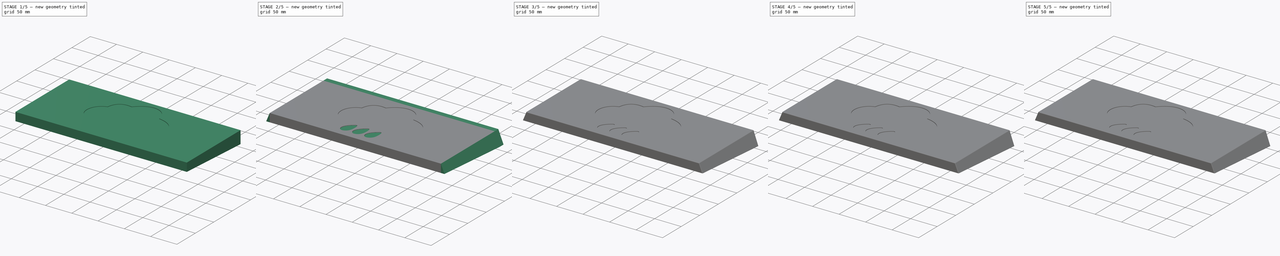
[diagram: build sequence overview — one tinted view per stage of 5, left to right]
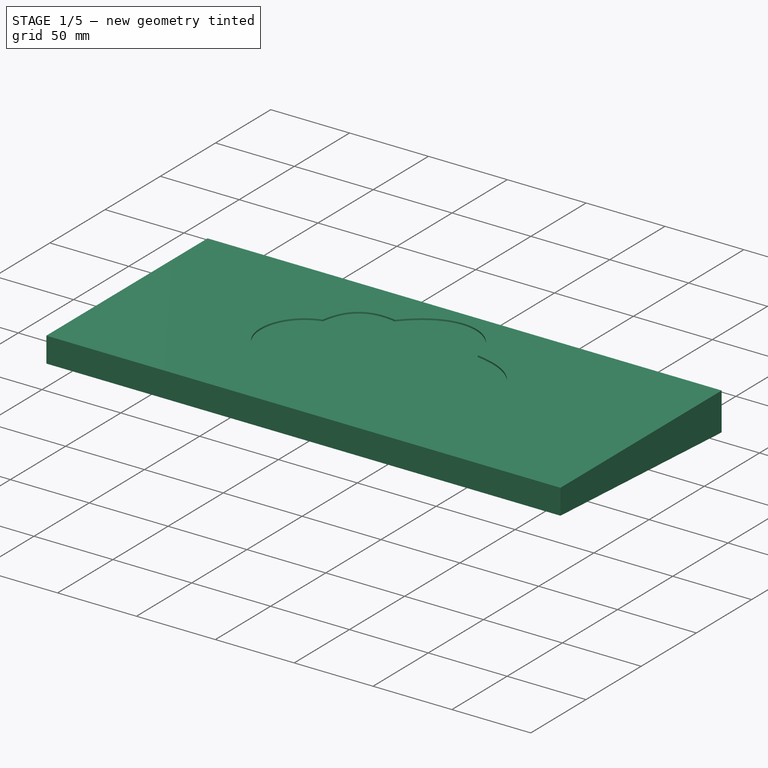
[diagram: stage 1 of 5 — iso view after this stage's code; geometry added in this stage tinted green]
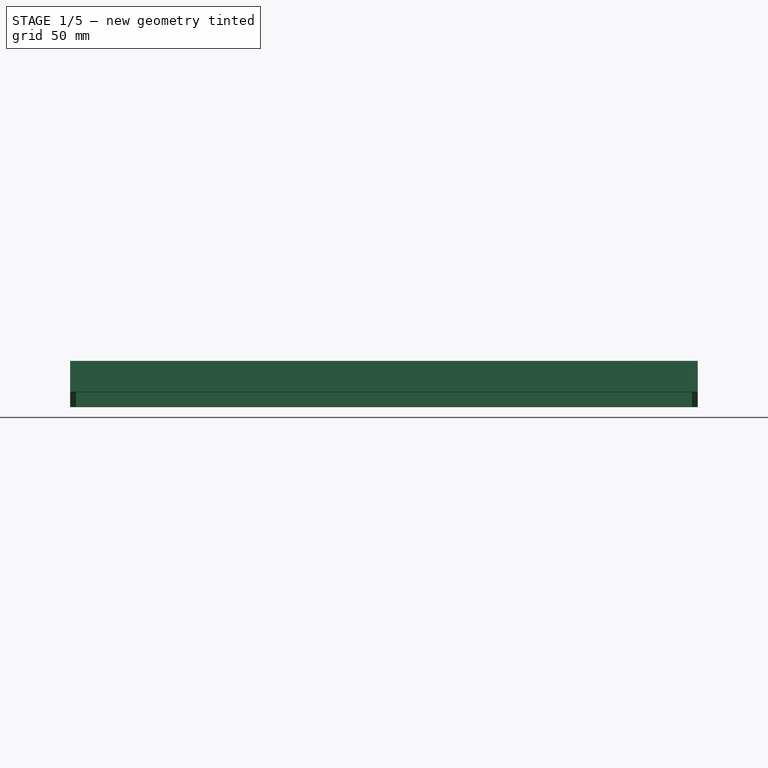
[diagram: stage 1 of 5 — front view after this stage's code; geometry added in this stage tinted green]
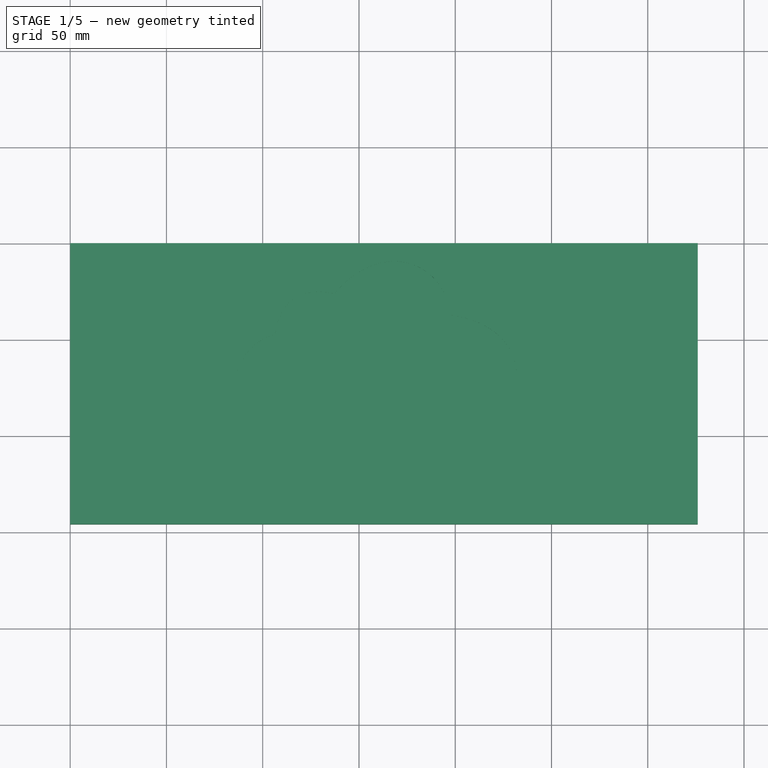
[diagram: stage 1 of 5 — top view after this stage's code; geometry added in this stage tinted green]
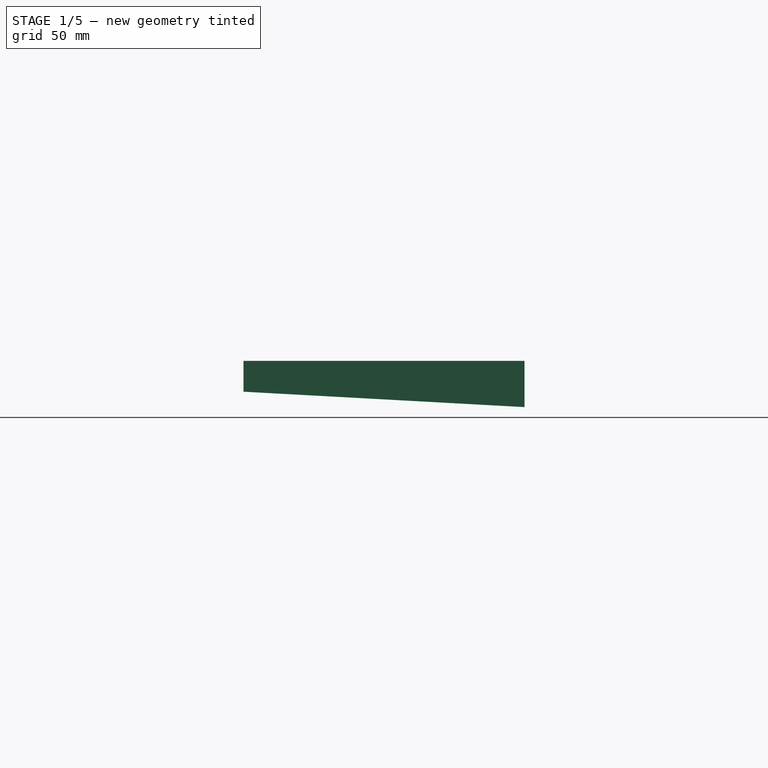
[diagram: stage 1 of 5 — right view after this stage's code; geometry added in this stage tinted green]
FCSTD DOCUMENT  (FreeCAD 0.21R33694 (Git))
Label: cap
License: All rights reserved
LicenseURL: http://en.wikipedia.org/wiki/All_rights_reserved
objects: PartDesign::Fillet×16, Sketcher::SketchObject×13, PartDesign::Pocket×8, PartDesign::Pad×5, PartDesign::Body×1
note: 72 computed .brp shape members not serialized (recipe doc carries the construction recipe); baked Part::Feature solids carry a one-line shape summary decoded from their .brp

FEATURE [Sketcher::SketchObject] Sketch
  FullyConstrained = true
  MapMode = 5
  Support = -> [XY_Plane]
  sketch-geometry (4):
    g0: LineSegment StartX=0 StartY=0 StartZ=0 EndX=326 EndY=0 EndZ=0
    g1: LineSegment StartX=326 StartY=0 StartZ=0 EndX=326 EndY=-146 EndZ=0
    g2: LineSegment StartX=326 StartY=-146 StartZ=0 EndX=0 EndY=-146 EndZ=0
    g3: LineSegment StartX=0 StartY=-146 StartZ=0 EndX=0 EndY=0 EndZ=0
  constraints (11):
    c: Coincident(g0,g1)
    c: Coincident(g1,g2)
    c: Coincident(g2,g3)
    c: Coincident(g3,g0)
    c: Horizontal(g0)
    c: Horizontal(g2)
    c: Vertical(g1)
    c: Vertical(g3)
    c: DistanceY(g1,g1) = 146
    c: DistanceX(g0,g0) = 326
    c: Coincident(g0,g-1)
FEATURE [PartDesign::Pad] Pad
  Direction = (0,0,1)
  Length = 24
  Length2 = 10
  Profile = -> Sketch
  ReferenceAxis = -> Sketch [N_Axis]
  Type = 0
FEATURE [Sketcher::SketchObject] Sketch001
  FullyConstrained = true
  MapMode = 5
  Placement = pos=(0,0,0) rot=(1,0,0;3.14159rad)
  Support = -> [Pad]
  sketch-geometry (4):
    g0: LineSegment StartX=3 StartY=141 StartZ=0 EndX=323 EndY=141 EndZ=0
    g1: LineSegment StartX=323 StartY=141 StartZ=0 EndX=323 EndY=3 EndZ=0
    g2: LineSegment StartX=323 StartY=3 StartZ=0 EndX=3 EndY=3 EndZ=0
    g3: LineSegment StartX=3 StartY=3 StartZ=0 EndX=3 EndY=141 EndZ=0
  constraints (12):
    c: Coincident(g0,g1)
    c: Coincident(g1,g2)
    c: Coincident(g2,g3)
    c: Coincident(g3,g0)
    c: Horizontal(g0)
    c: Horizontal(g2)
    c: Vertical(g1)
    c: Vertical(g3)
    c: DistanceX(g0,g0) = 320
    c: DistanceY(g1,g1) = 138
    c: DistanceX(g-1,g2) = 3
    c: DistanceY(g-1,g2) = 3
FEATURE [PartDesign::Pocket] Pocket
  BaseFeature = -> Pad
  Direction = (0,0,1)
  Length = 10
  Length2 = 5
  Profile = -> Sketch001
  ReferenceAxis = -> Sketch001 [N_Axis]
  Type = 0
FEATURE [Sketcher::SketchObject] Sketch002
  FullyConstrained = true
  MapMode = 5
  Placement = pos=(0,0,0) rot=(0.57735,-0.57735,-0.57735;2.0944rad)
  Support = -> [Pocket]
  sketch-geometry (3):
    g0: LineSegment StartX=0 StartY=0 StartZ=0 EndX=146 EndY=0 EndZ=0
    g1: LineSegment StartX=0 StartY=0 StartZ=0 EndX=146 EndY=8 EndZ=0
    g2: LineSegment StartX=146 StartY=8 StartZ=0 EndX=146 EndY=0 EndZ=0
  constraints (8):
    c: Horizontal(g0)
    c: Coincident(g0,g-1)
    c: Distance(g0) = 146
    c: Coincident(g1,g0)
    c: Vertical(g2)
    c: Coincident(g0,g2)
    c: Coincident(g2,g1)
    c: Distance(g2) = 8
FEATURE [PartDesign::Pocket] Pocket001
  BaseFeature = -> Pocket
  Direction = (1,0,0)
  Length = 350
  Length2 = 5
  Profile = -> Sketch002
  ReferenceAxis = -> Sketch002 [N_Axis]
  Type = 0
FEATURE [Sketcher::SketchObject] Sketch003
  FullyConstrained = true
  MapMode = 5
  Placement = pos=(0,0,10) rot=(1,0,0;3.14159rad)
  Support = -> [Pocket001]
  sketch-geometry (4):
    g0: LineSegment StartX=7 StartY=137 StartZ=0 EndX=319 EndY=137 EndZ=0
    g1: LineSegment StartX=319 StartY=137 StartZ=0 EndX=319 EndY=7 EndZ=0
    g2: LineSegment StartX=319 StartY=7 StartZ=0 EndX=7 EndY=7 EndZ=0
    g3: LineSegment StartX=7 StartY=7 StartZ=0 EndX=7 EndY=137 EndZ=0
  constraints (12):
    c: Coincident(g0,g1)
    c: Coincident(g1,g2)
    c: Coincident(g2,g3)
    c: Coincident(g3,g0)
    c: Horizontal(g0)
    c: Horizontal(g2)
    c: Vertical(g1)
    c: Vertical(g3)
    c: DistanceX(g-1,g2) = 7
    c: Distance(g2) = 312
    c: DistanceY(g-1,g2) = 7
    c: Distance(g3) = 130
FEATURE [PartDesign::Pocket] Pocket002
  BaseFeature = -> Pocket001
  Direction = (0,0,1)
  Length = 10
  Length2 = 5
  Profile = -> Sketch003
  ReferenceAxis = -> Sketch003 [N_Axis]
  Type = 0
FEATURE [Sketcher::SketchObject] Sketch004
  FullyConstrained = true
  MapMode = 5
  Placement = pos=(0,0,20) rot=(1,0,0;3.14159rad)
  Support = -> [Pocket002]
  sketch-geometry (4):
    g0: LineSegment StartX=7 StartY=38 StartZ=0 EndX=319 EndY=38 EndZ=0
    g1: LineSegment StartX=319 StartY=38 StartZ=0 EndX=319 EndY=36 EndZ=0
    g2: LineSegment StartX=319 StartY=36 StartZ=0 EndX=7 EndY=36 EndZ=0
    g3: LineSegment StartX=7 StartY=36 StartZ=0 EndX=7 EndY=38 EndZ=0
  constraints (12):
    c: Coincident(g0,g1)
    c: Coincident(g1,g2)
    c: Coincident(g2,g3)
    c: Coincident(g3,g0)
    c: Horizontal(g0)
    c: Horizontal(g2)
    c: Vertical(g1)
    c: Vertical(g3)
    c: DistanceY(g-1,g2) = 36
    c: Distance(g3) = 2
    c: DistanceX(g-1,g0) = 7
    c: Distance(g0) = 312
FEATURE [PartDesign::Pad] Pad001
  BaseFeature = -> Pocket002
  Direction = (0,0,-1)
  Length = 8
  Length2 = 10
  Profile = -> Sketch004
  ReferenceAxis = -> Sketch004 [N_Axis]
  Type = 0
FEATURE [Sketcher::SketchObject] Sketch005
  FullyConstrained = true
  MapMode = 5
  Placement = pos=(0,0,24) rot=(0,0,1;0rad)
  Support = -> [Pad001]
  sketch-geometry (28):
    g0-g3: Circle x4 (B-spline internal-alignment scaffolding for g4; pole/knot coordinates omitted)
    g4: BSplineCurve PolesCount=4 KnotsCount=2 Degree=3 IsPeriodic=0
    g5: GeomPoint X=197.39 Y=-37.25 Z=0
    g6: GeomPoint X=137.21 Y=-26.19 Z=0
    g7: Circle CenterX=137.21 CenterY=-26.19 CenterZ=0 NormalX=0 NormalY=0 NormalZ=1 AngleXU=0 Radius=1
    g8: Circle CenterX=110.49 CenterY=-21.03 CenterZ=0 NormalX=0 NormalY=0 NormalZ=1 AngleXU=0 Radius=1
    g9: Circle CenterX=106.38 CenterY=-47.47 CenterZ=0 NormalX=0 NormalY=0 NormalZ=1 AngleXU=0 Radius=1
    g10: BSplineCurve PolesCount=3 KnotsCount=2 Degree=2 IsPeriodic=0
    g11: GeomPoint X=137.21 Y=-26.19 Z=0
    g12: GeomPoint X=106.38 Y=-47.47 Z=0
    g13-g16: Circle x4 (B-spline internal-alignment scaffolding for g17; pole/knot coordinates omitted)
    g17: BSplineCurve PolesCount=4 KnotsCount=2 Degree=3 IsPeriodic=0
    g18: GeomPoint X=197.39 Y=-37.25 Z=0
    g19: GeomPoint X=198.8 Y=-99.1 Z=0
    g20: LineSegment StartX=198.8 StartY=-99.1 StartZ=0 EndX=112.19 EndY=-99.1 EndZ=0
    g21-g24: Circle x4 (B-spline internal-alignment scaffolding for g25; pole/knot coordinates omitted)
    g25: BSplineCurve PolesCount=4 KnotsCount=2 Degree=3 IsPeriodic=0
    g26: GeomPoint X=106.38 Y=-47.47 Z=0
    g27: GeomPoint X=112.19 Y=-99.1 Z=0
  constraints (58):
    c: Weight(g0) = 1
    c: Equal(g0,g1)
    c: Equal(g0,g2)
    c: Equal(g0,g3)
    c: InternalAlignment(g0-g3 -> g4) x4
    c: InternalAlignment(g5,g4)
    c: InternalAlignment(g6,g4)
    c: DistanceY(g4) = -37.25
    c: DistanceX(g4) = 197.39
    c: DistanceY(g4) = -26.19
    c: DistanceX(g4) = 137.21
    c: DistanceY(g2) = 3.81
    c: DistanceX(g2) = 163.08
    c: DistanceX(g1) = 194.95
    c: DistanceY(g1) = -10.73
    c: Weight(g7) = 1
    c: Equal(g7,g8)
    c: Equal(g7,g9)
    c: InternalAlignment(g7,g10)
    c: InternalAlignment(g8,g10)
    c: InternalAlignment(g9,g10)
    c: InternalAlignment(g11,g10)
    c: InternalAlignment(g12,g10)
    c: Coincident(g4,g10)
    c: DistanceY(g10) = -47.47
    c: DistanceX(g10) = 106.38
    c: DistanceX(g8) = 110.49
    c: DistanceY(g8) = -21.03
    c: Weight(g13) = 1
    c: Equal(g13,g14)
    c: Equal(g13,g15)
    c: Equal(g13,g16)
    c: InternalAlignment(g13-g16 -> g17) x4
    c: InternalAlignment(g18,g17)
    c: InternalAlignment(g19,g17)
    c: Coincident(g17,g4)
    c: DistanceY(g17) = -99.1
    c: DistanceX(g17) = 198.8
    c: Horizontal(g20)
    c: Coincident(g20,g17)
    c: Weight(g21) = 1
    c: Equal(g21,g22)
    c: Equal(g21,g23)
    c: Equal(g21,g24)
    c: InternalAlignment(g21-g24 -> g25) x4
    c: InternalAlignment(g26,g25)
    c: InternalAlignment(g27,g25)
    c: Coincident(g25,g20)
    c: Coincident(g25,g10)
    c: DistanceY(g14) = -44.58
    c: DistanceX(g14) = 247.04
    c: DistanceY(g15) = -96.16
    c: DistanceX(g15) = 238.66
    c: DistanceX(g22) = 77.83
    c: DistanceY(g22) = -55.23
    c: DistanceY(g23) = -100.02
    c: DistanceX(g23) = 78.31
    c: DistanceX(g20) = 112.19
FEATURE [PartDesign::Pocket] Pocket003
  BaseFeature = -> Pad001
  Direction = (0,0,-1)
  Length = 1
  Length2 = 5
  Profile = -> Sketch005
  ReferenceAxis = -> Sketch005 [N_Axis]
  Type = 0
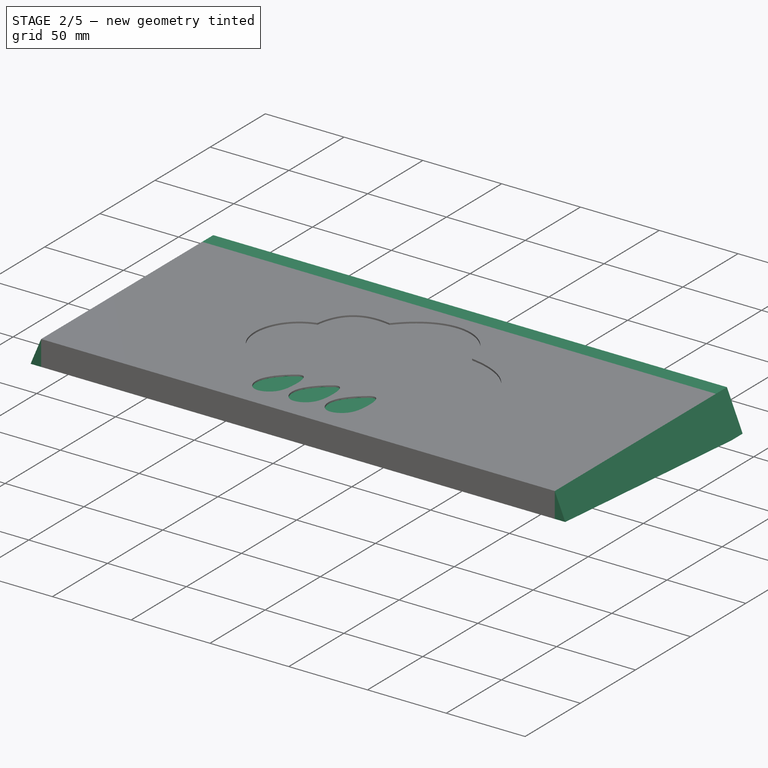
[diagram: stage 2 of 5 — iso view after this stage's code; geometry added in this stage tinted green]
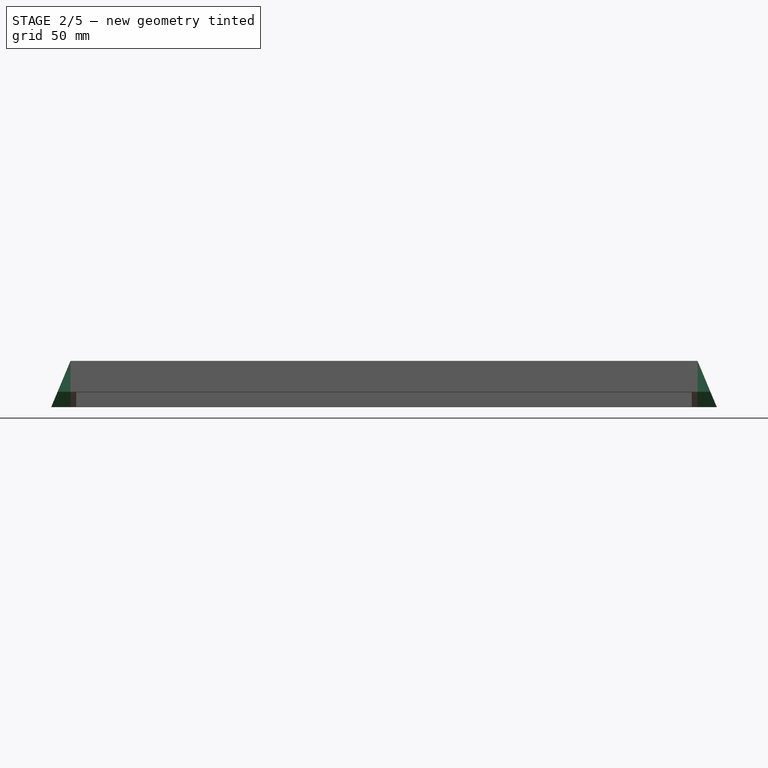
[diagram: stage 2 of 5 — front view after this stage's code; geometry added in this stage tinted green]
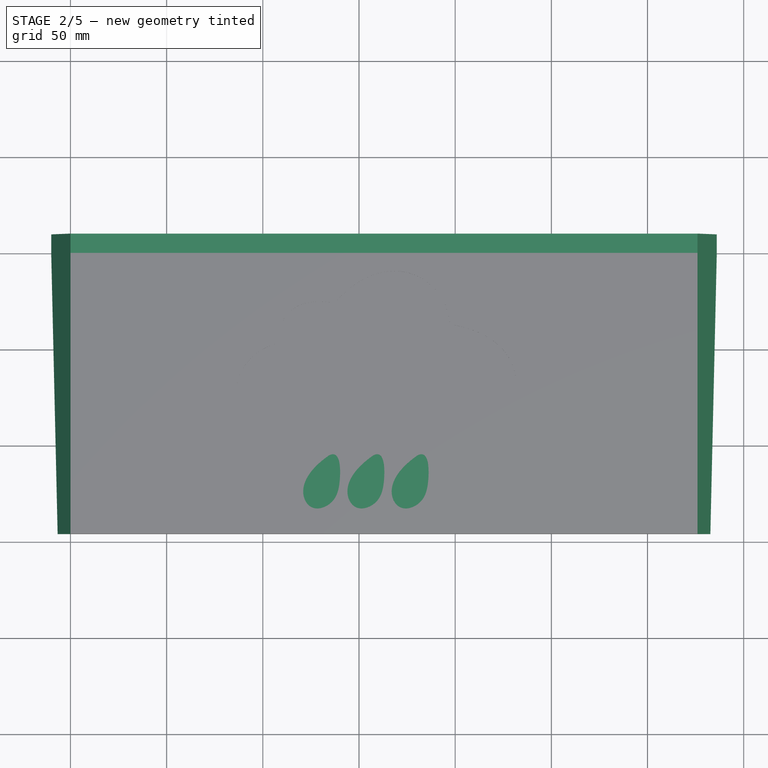
[diagram: stage 2 of 5 — top view after this stage's code; geometry added in this stage tinted green]
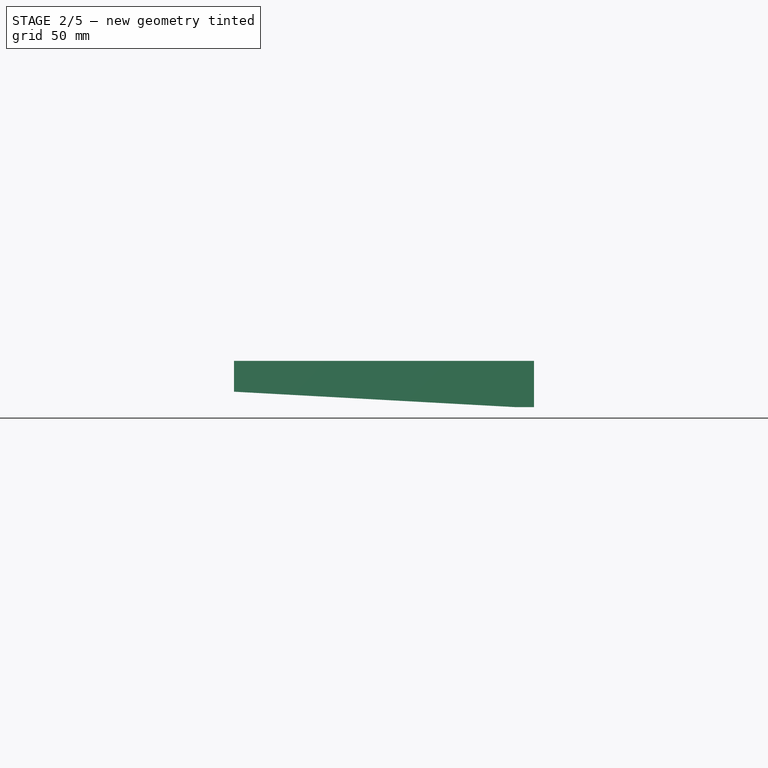
[diagram: stage 2 of 5 — right view after this stage's code; geometry added in this stage tinted green]
FEATURE [Sketcher::SketchObject] Sketch006
  FullyConstrained = true
  MapMode = 5
  Placement = pos=(0,0,24) rot=(0,0,1;0rad)
  Support = -> [Pocket003]
  sketch-geometry (39):
    g0-g6: Circle x7 (B-spline internal-alignment scaffolding for g7; pole/knot coordinates omitted)
    g7: BSplineCurve PolesCount=7 KnotsCount=5 Degree=3 IsPeriodic=0
    g8-g12: GeomPoint x5 (B-spline internal-alignment scaffolding for g7; pole/knot coordinates omitted)
    g13-g19: Circle x7 (B-spline internal-alignment scaffolding for g20; pole/knot coordinates omitted)
    g20: BSplineCurve PolesCount=7 KnotsCount=5 Degree=3 IsPeriodic=0
    g21-g25: GeomPoint x5 (B-spline internal-alignment scaffolding for g20; pole/knot coordinates omitted)
    g26-g32: Circle x7 (B-spline internal-alignment scaffolding for g33; pole/knot coordinates omitted)
    g33: BSplineCurve PolesCount=7 KnotsCount=5 Degree=3 IsPeriodic=0
    g34-g38: GeomPoint x5 (B-spline internal-alignment scaffolding for g33; pole/knot coordinates omitted)
  constraints (51):
    c: Weight(g0) = 1
    c: Equal(g0, g1-g6) x6
    c: Coincident(g7,g0)
    c: InternalAlignment(g0-g6 -> g7) x7
    c: InternalAlignment(g8-g12 -> g7) x5
    c: DistanceX(g5) = 139.96
    c: DistanceY(g5) = -102.27
    c: DistanceX(g7) = 134.29
    c: DistanceX(g1) = 118.6
    c: DistanceX(g4) = 140.99
    c: DistanceX(g2) = 120.88
    c: DistanceX(g3) = 137.06
    c: DistanceY(g2,g3) = 4.29
    c: DistanceY(g3,g4) = 12.2
    c: DistanceY(g2,g1) = 19.54
    c: DistanceY(g1,g7) = 10.98
    c: DistanceY(g7,g5) = 3.12
    c: Weight(g13) = 1
    c: Equal(g13, g14-g19) x6
    c: Coincident(g20,g13)
    c: InternalAlignment(g13-g19 -> g20) x7
    c: InternalAlignment(g21-g25 -> g20) x5
    c: DistanceX(g7,g20) = 23
    c: DistanceY(g5,g18) = 0
    c: DistanceX(g5,g18) = 23
    c: DistanceY(g1,g14) = 0
    c: DistanceX(g1,g14) = 23
    c: DistanceY(g2,g15) = 0
    c: DistanceX(g2,g15) = 23
    c: DistanceX(g3,g16) = 23
    c: DistanceY(g3,g16) = 0
    c: DistanceX(g4,g17) = 23
    c: DistanceY(g4,g17) = 0
    c: DistanceY(g20,g7) = 0
    c: Weight(g26) = 1
    c: Equal(g26, g27-g32) x6
    c: Coincident(g33,g26)
    c: InternalAlignment(g26-g32 -> g33) x7
    c: InternalAlignment(g34-g38 -> g33) x5
    c: DistanceY(g20,g33) = 0
    c: DistanceX(g20,g33) = 23
    c: DistanceY(g14,g27) = 0
    c: DistanceX(g14,g27) = 23
    c: DistanceY(g15,g28) = 0
    c: DistanceX(g15,g28) = 23
    c: DistanceY(g16,g29) = 0
    c: DistanceX(g16,g29) = 23
    c: DistanceY(g17,g30) = 0
    c: DistanceX(g17,g30) = 23
    c: DistanceX(g18,g31) = 23
    c: DistanceY(g18,g31) = 0
FEATURE [PartDesign::Pocket] Pocket004
  BaseFeature = -> Pocket003
  Direction = (0,0,-1)
  Length = 1
  Length2 = 5
  Profile = -> Sketch006
  ReferenceAxis = -> Sketch006 [N_Axis]
  Type = 0
FEATURE [Sketcher::SketchObject] Sketch007
  FullyConstrained = true
  MapMode = 5
  Placement = pos=(0,0,0) rot=(0,0.707107,0.707107;3.14159rad)
  Support = -> [Pocket004]
  sketch-geometry (4):
    g0: LineSegment StartX=-326 StartY=24 StartZ=0 EndX=0 EndY=24 EndZ=0
    g1: LineSegment StartX=0 StartY=24 StartZ=0 EndX=0 EndY=0 EndZ=0
    g2: LineSegment StartX=0 StartY=0 StartZ=0 EndX=-326 EndY=0 EndZ=0
    g3: LineSegment StartX=-326 StartY=0 StartZ=0 EndX=-326 EndY=24 EndZ=0
  constraints (11):
    c: Coincident(g0,g1)
    c: Coincident(g1,g2)
    c: Coincident(g2,g3)
    c: Coincident(g3,g0)
    c: Horizontal(g0)
    c: Horizontal(g2)
    c: Vertical(g1)
    c: Vertical(g3)
    c: Coincident(g1,g-1)
    c: Distance(g1) = 24
    c: Distance(g0) = 326
FEATURE [PartDesign::Pad] Pad002
  BaseFeature = -> Pocket004
  Direction = (0,1,-2e-16)
  Length = 10
  Length2 = 10
  Profile = -> Sketch007
  ReferenceAxis = -> Sketch007 [N_Axis]
  Type = 0
FEATURE [Sketcher::SketchObject] Sketch009
  FullyConstrained = true
  MapMode = 5
  Placement = pos=(0,0,0) rot=(0.57735,-0.57735,-0.57735;2.0944rad)
  Support = -> [Pad002]
  sketch-geometry (5):
    g0: LineSegment StartX=-10 StartY=24 StartZ=0 EndX=-10 EndY=0 EndZ=0
    g1: LineSegment StartX=-10 StartY=0 StartZ=0 EndX=0 EndY=0 EndZ=0
    g2: LineSegment StartX=0 StartY=0 StartZ=0 EndX=146 EndY=8 EndZ=0
    g3: LineSegment StartX=146 StartY=8 StartZ=0 EndX=146 EndY=24 EndZ=0
    g4: LineSegment StartX=146 StartY=24 StartZ=0 EndX=-10 EndY=24 EndZ=0
  constraints (14):
    c: Vertical(g0)
    c: Coincident(g1,g0)
    c: Horizontal(g1)
    c: Horizontal(g4)
    c: Coincident(g1,g-1)
    c: Distance(g1) = 10
    c: Distance(g0) = 24
    c: Coincident(g4,g0)
    c: Distance(g4) = 156
    c: Vertical(g3)
    c: Coincident(g4,g3)
    c: Coincident(g2,g3)
    c: Coincident(g2,g1)
    c: Distance(g3) = 16
FEATURE [PartDesign::Pad] Pad003
  BaseFeature = -> Pad002
  Direction = (-1,0,0)
  Length = 20
  Length2 = 10
  Profile = -> Sketch009
  ReferenceAxis = -> Sketch009 [N_Axis]
  Type = 0
FEATURE [Sketcher::SketchObject] Sketch010
  FullyConstrained = true
  MapMode = 5
  Placement = pos=(326,0,0) rot=(0.57735,0.57735,0.57735;2.0944rad)
  Support = -> [Pad003]
  sketch-geometry (5):
    g0: LineSegment StartX=10 StartY=24 StartZ=0 EndX=10 EndY=0 EndZ=0
    g1: LineSegment StartX=10 StartY=0 StartZ=0 EndX=0 EndY=0 EndZ=0
    g2: LineSegment StartX=0 StartY=0 StartZ=0 EndX=-146 EndY=8 EndZ=0
    g3: LineSegment StartX=-146 StartY=8 StartZ=0 EndX=-146 EndY=24 EndZ=0
    g4: LineSegment StartX=-146 StartY=24 StartZ=0 EndX=10 EndY=24 EndZ=0
  constraints (14):
    c: Vertical(g0)
    c: Coincident(g1,g0)
    c: Horizontal(g1)
    c: Vertical(g3)
    c: Horizontal(g4)
    c: Coincident(g1,g-1)
    c: Distance(g1) = 10
    c: Distance(g0) = 24
    c: Coincident(g4,g0)
    c: Distance(g4) = 156
    c: Coincident(g3,g4)
    c: Distance(g3) = 16
    c: Coincident(g2,g3)
    c: Coincident(g2,g1)
FEATURE [PartDesign::Pad] Pad004
  BaseFeature = -> Pad003
  Direction = (1,0,0)
  Length = 20
  Length2 = 10
  Profile = -> Sketch010
  ReferenceAxis = -> Sketch010 [N_Axis]
  Type = 0
FEATURE [Sketcher::SketchObject] Sketch011
  FullyConstrained = true
  MapMode = 5
  Placement = pos=(0,10,0) rot=(0,0.707107,0.707107;3.14159rad)
  Support = -> [Pad004]
  sketch-geometry (4):
    g0: LineSegment StartX=10 StartY=0 StartZ=0 EndX=0 EndY=24 EndZ=0
    g1: LineSegment StartX=10 StartY=0 StartZ=0 EndX=90.06 EndY=0 EndZ=0
    g2: LineSegment StartX=90.06 StartY=0 StartZ=0 EndX=62.8148 EndY=43.29 EndZ=0
    g3: LineSegment StartX=62.8148 StartY=43.29 StartZ=0 EndX=0 EndY=24 EndZ=0
  constraints (12):
    c: DistanceY(g-1,g0) = 0
    c: DistanceX(g-1,g0) = 10
    c: DistanceX(g0) = 0
    c: DistanceY(g0) = 24
    c: Horizontal(g1)
    c: Coincident(g1,g0)
    c: Distance(g1) = 80.06
    c: Coincident(g2,g1)
    c: Coincident(g3,g2)
    c: Coincident(g3,g0)
    c: Distance(g3) = 65.71
    c: Distance(g2) = 51.15
FEATURE [PartDesign::Pocket] Pocket005
  BaseFeature = -> Pad004
  Direction = (0,-1,2e-16)
  Length = 160
  Length2 = 5
  Profile = -> Sketch011
  ReferenceAxis = -> Sketch011 [N_Axis]
  Type = 0
FEATURE [Sketcher::SketchObject] Sketch012
  FullyConstrained = true
  MapMode = 5
  Placement = pos=(0,10,0) rot=(0,0.707107,0.707107;3.14159rad)
  Support = -> [Pocket005]
  sketch-geometry (4):
    g0: LineSegment StartX=-383.56 StartY=0 StartZ=0 EndX=-336 EndY=0 EndZ=0
    g1: LineSegment StartX=-336 StartY=0 StartZ=0 EndX=-326 EndY=24 EndZ=0
    g2: LineSegment StartX=-383.56 StartY=0 StartZ=0 EndX=-386.968 EndY=53.4314 EndZ=0
    g3: LineSegment StartX=-386.968 StartY=53.4314 StartZ=0 EndX=-326 EndY=24 EndZ=0
  constraints (12):
    c: Horizontal(g0)
    c: DistanceY(g0) = 0
    c: DistanceX(g0) = -336
    c: Coincident(g1,g0)
    c: DistanceX(g1) = -326
    c: DistanceY(g1) = 24
    c: Distance(g0) = 47.56
    c: Coincident(g2,g0)
    c: Coincident(g3,g2)
    c: Coincident(g3,g1)
    c: Distance(g3) = 67.7
    c: Distance(g2) = 53.54
FEATURE [PartDesign::Pocket] Pocket006
  BaseFeature = -> Pocket005
  Direction = (0,-1,2e-16)
  Length = 380
  Length2 = 5
  Profile = -> Sketch012
  ReferenceAxis = -> Sketch012 [N_Axis]
  Type = 0
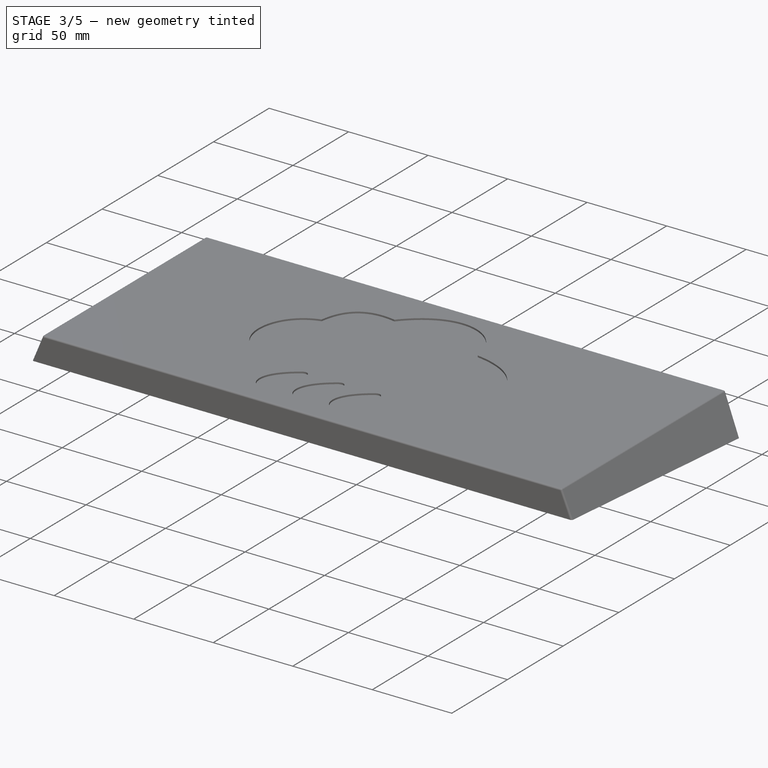
[diagram: stage 3 of 5 — iso view after this stage's code; geometry added in this stage tinted green]
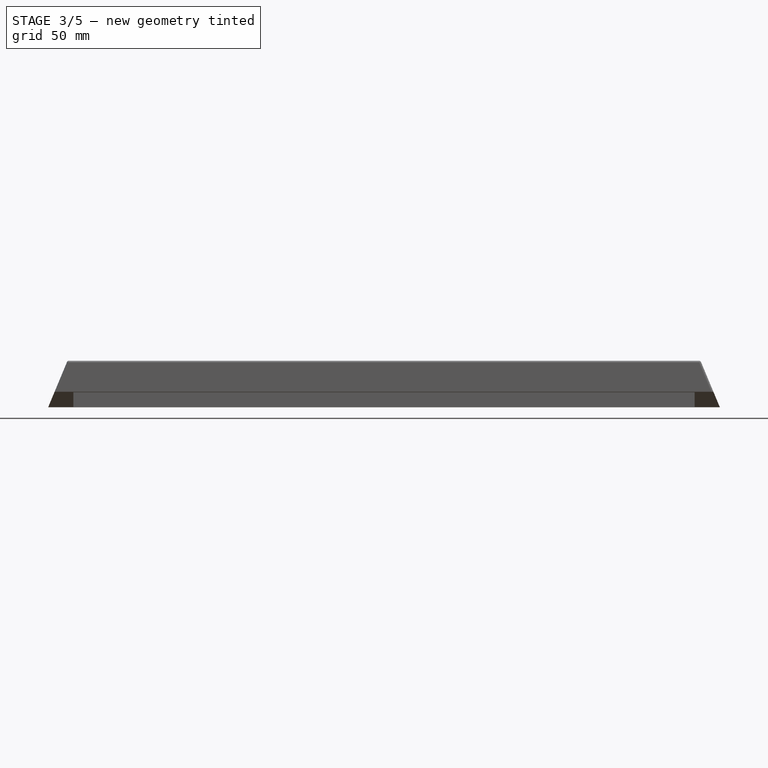
[diagram: stage 3 of 5 — front view after this stage's code; geometry added in this stage tinted green]
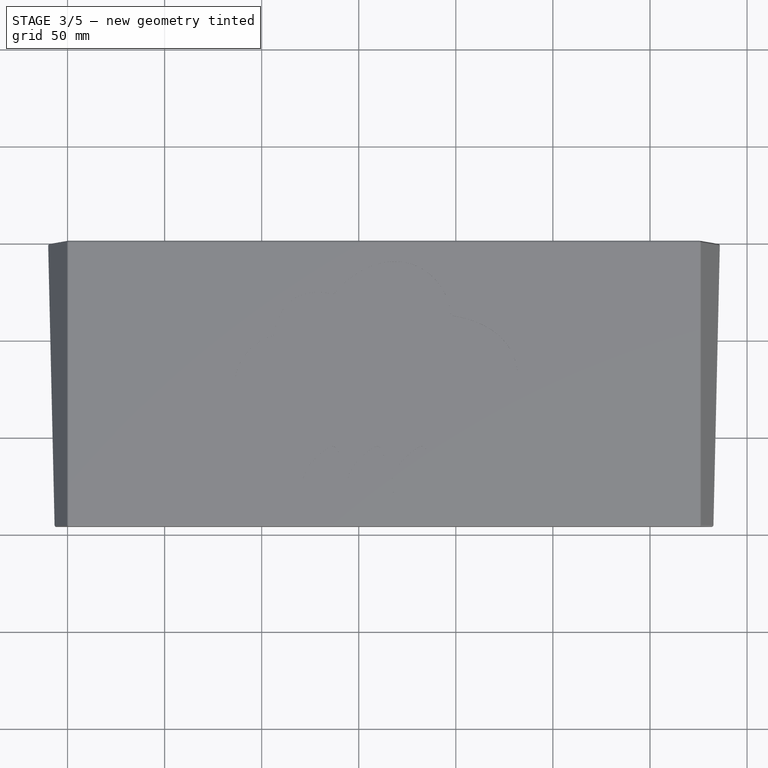
[diagram: stage 3 of 5 — top view after this stage's code; geometry added in this stage tinted green]
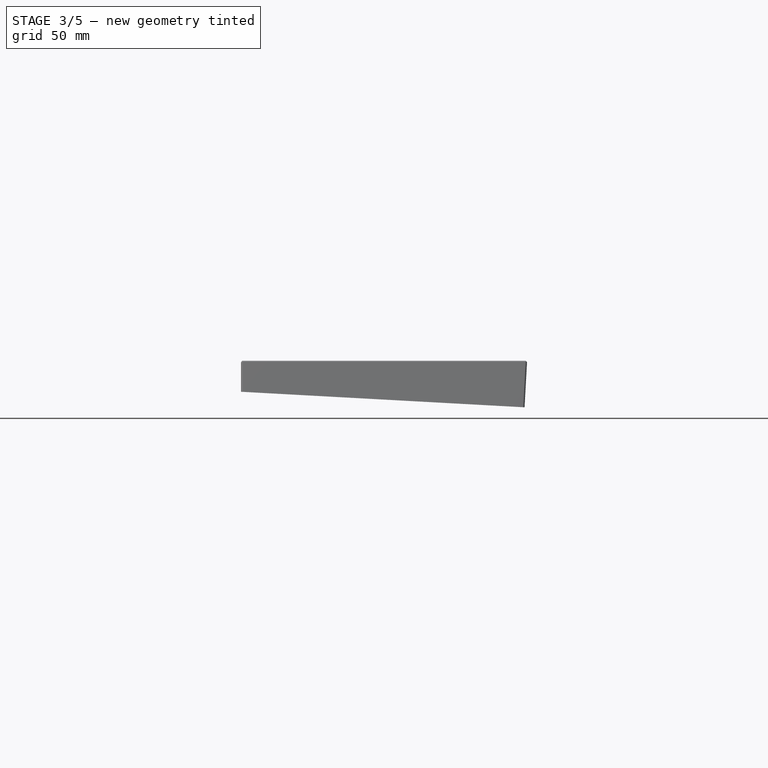
[diagram: stage 3 of 5 — right view after this stage's code; geometry added in this stage tinted green]
FEATURE [Sketcher::SketchObject] Sketch013
  FullyConstrained = true
  MapMode = 5
  Placement = pos=(0,0,0) rot=(0.57735,0.57735,0.57735;2.0944rad)
  Support = -> [YZ_Plane]
  sketch-geometry (4):
    g0: LineSegment StartX=0 StartY=0 StartZ=0 EndX=3.1 EndY=56.61 EndZ=0
    g1: LineSegment StartX=3.1 StartY=56.61 StartZ=0 EndX=76.0923 EndY=25.7187 EndZ=0
    g2: LineSegment StartX=76.0923 StartY=25.7187 StartZ=0 EndX=62.818 EndY=-34.69 EndZ=0
    g3: LineSegment StartX=62.818 StartY=-34.69 StartZ=0 EndX=0 EndY=0 EndZ=0
  constraints (12):
    c: DistanceX(g0) = 0
    c: DistanceY(g0) = 0
    c: DistanceY(g0) = 56.61
    c: DistanceX(g0) = 3.1
    c: Coincident(g1,g0)
    c: Coincident(g3,g0)
    c: Coincident(g1,g2)
    c: Distance(g1) = 79.26
    c: Distance(g2) = 61.85
    c: Coincident(g3,g2)
    c: Distance(g3) = 71.76
    c: DistanceY(g2) = -34.69
FEATURE [PartDesign::Pocket] Pocket007
  BaseFeature = -> Pocket006
  Direction = (-1,2e-16,-3e-16)
  Length = 720
  Length2 = 5
  Midplane = true
  Profile = -> Sketch013
  ReferenceAxis = -> Sketch013 [N_Axis]
  Type = 0
FEATURE [PartDesign::Fillet] Fillet
  Base = -> Pocket007 [Edge30]
  BaseFeature = -> Pocket007
  Radius = 1
  SupportTransform = false
  UseAllEdges = false
FEATURE [PartDesign::Fillet] Fillet001
  Base = -> Fillet [Edge39]
  BaseFeature = -> Fillet
  Radius = 1
  SupportTransform = false
  UseAllEdges = false
FEATURE [PartDesign::Fillet] Fillet002
  Base = -> Fillet001 [Edge37]
  BaseFeature = -> Fillet001
  Radius = 1
  SupportTransform = false
  UseAllEdges = false
FEATURE [PartDesign::Fillet] Fillet003
  Base = -> Fillet002 [Edge37]
  BaseFeature = -> Fillet002
  Radius = 1
  SupportTransform = false
  UseAllEdges = false
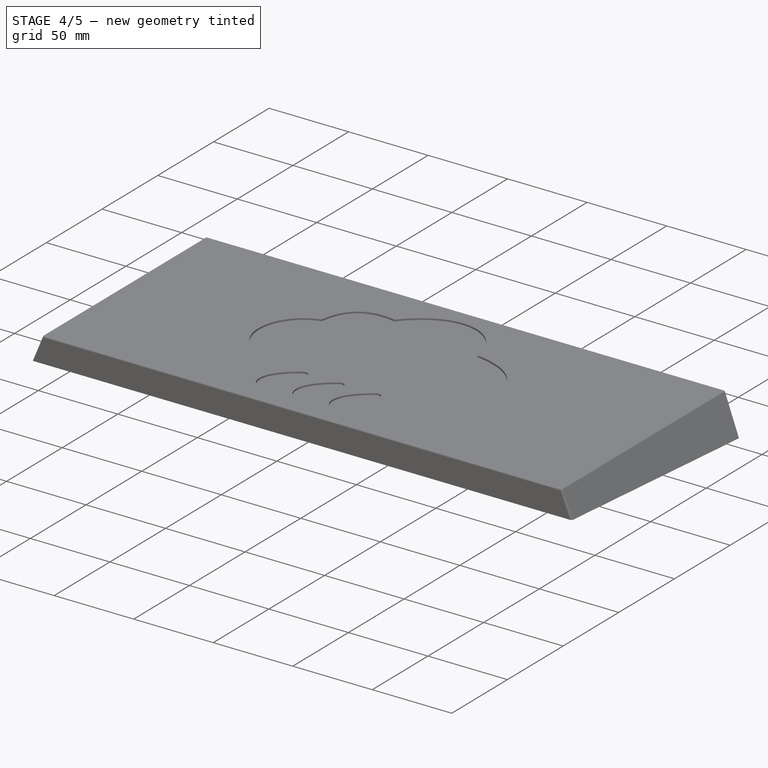
[diagram: stage 4 of 5 — iso view after this stage's code; geometry added in this stage tinted green]
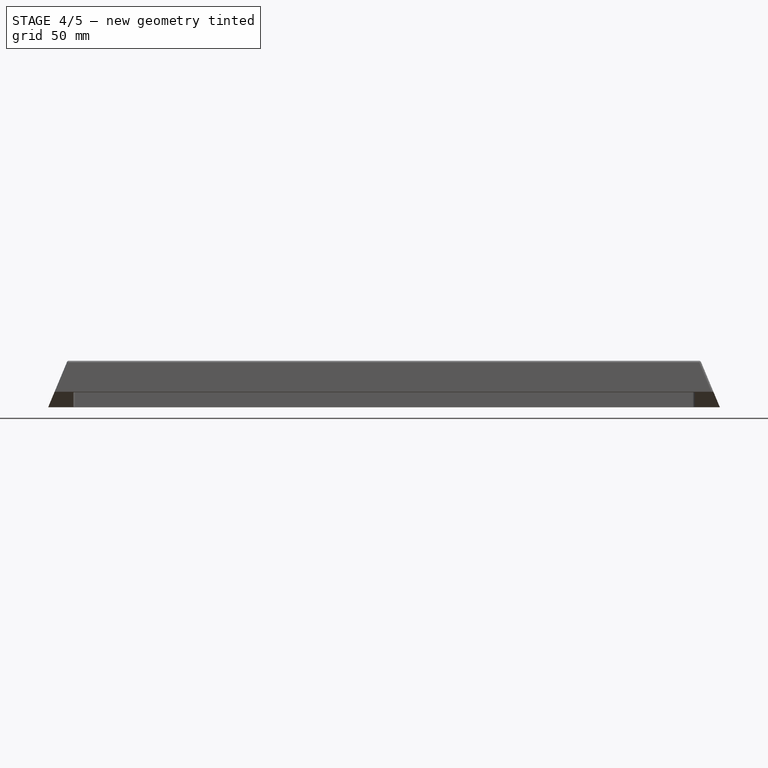
[diagram: stage 4 of 5 — front view after this stage's code; geometry added in this stage tinted green]
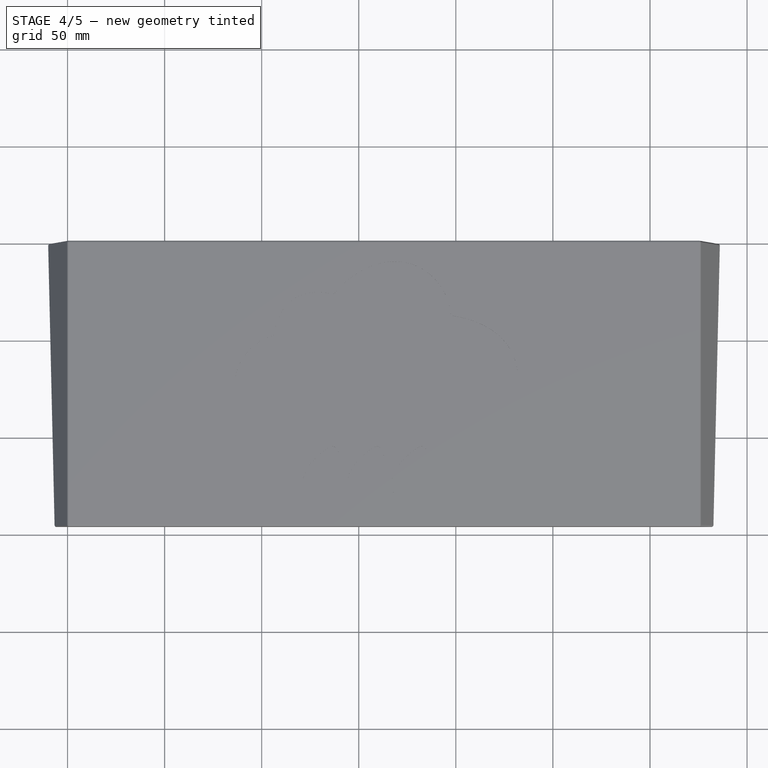
[diagram: stage 4 of 5 — top view after this stage's code; geometry added in this stage tinted green]
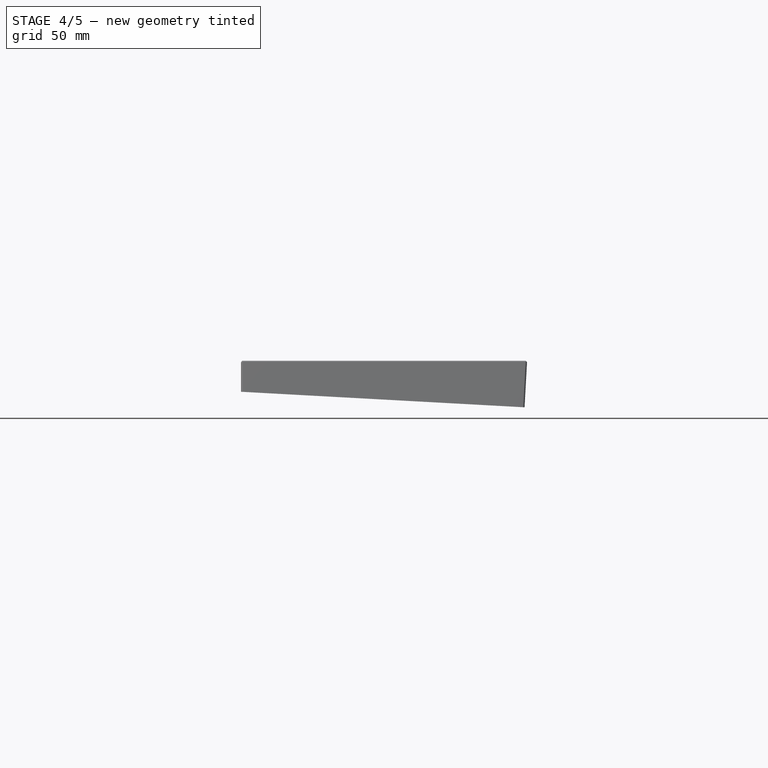
[diagram: stage 4 of 5 — right view after this stage's code; geometry added in this stage tinted green]
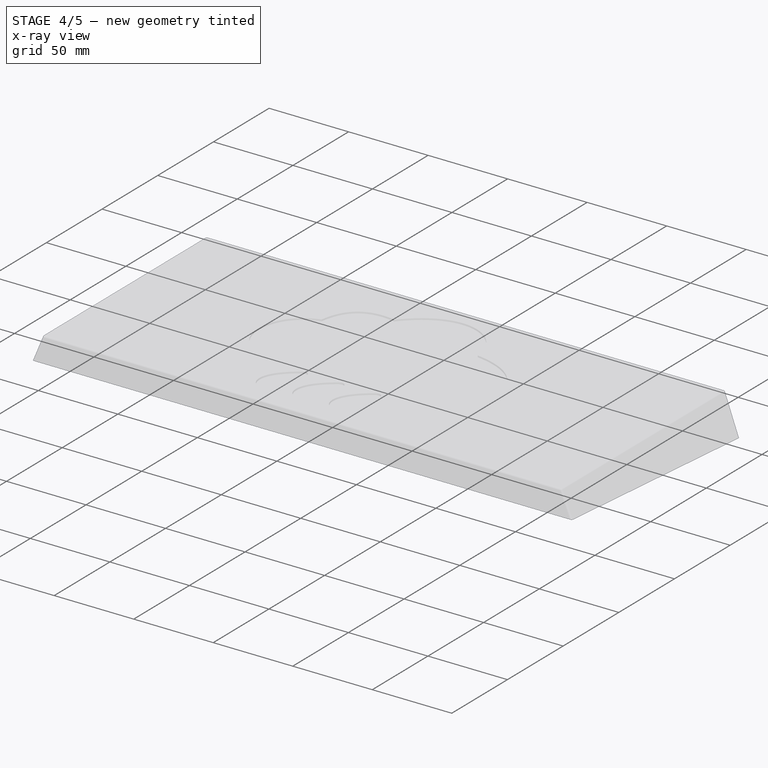
[diagram: stage 4 of 5 — x-ray composite at the iso view; earlier geometry ghosted, this stage's added geometry solid]
FEATURE [PartDesign::Fillet] Fillet004
  Base = -> Fillet003 [Edge55]
  BaseFeature = -> Fillet003
  Radius = 1
  SupportTransform = false
  UseAllEdges = false
FEATURE [PartDesign::Fillet] Fillet005
  Base = -> Fillet004 [Edge8]
  BaseFeature = -> Fillet004
  Radius = 1
  SupportTransform = false
  UseAllEdges = false
FEATURE [PartDesign::Fillet] Fillet006
  Base = -> Fillet005 [Edge4]
  BaseFeature = -> Fillet005
  Radius = 1
  SupportTransform = false
  UseAllEdges = false
FEATURE [PartDesign::Fillet] Fillet007
  Base = -> Fillet006 [Edge4]
  BaseFeature = -> Fillet006
  Radius = 1
  SupportTransform = false
  UseAllEdges = false
FEATURE [PartDesign::Fillet] Fillet008
  Base = -> Fillet007 [Edge31]
  BaseFeature = -> Fillet007
  Radius = 2
  SupportTransform = false
  UseAllEdges = false
FEATURE [PartDesign::Fillet] Fillet009
  Base = -> Fillet008 [Edge1]
  BaseFeature = -> Fillet008
  Radius = 2
  SupportTransform = false
  UseAllEdges = false
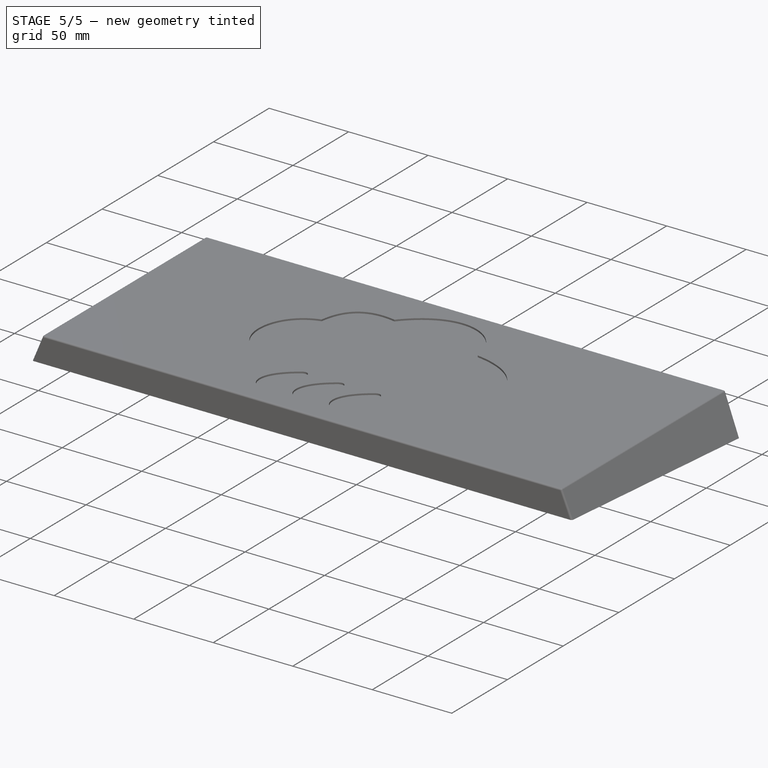
[diagram: stage 5 of 5 — iso view after this stage's code; geometry added in this stage tinted green]
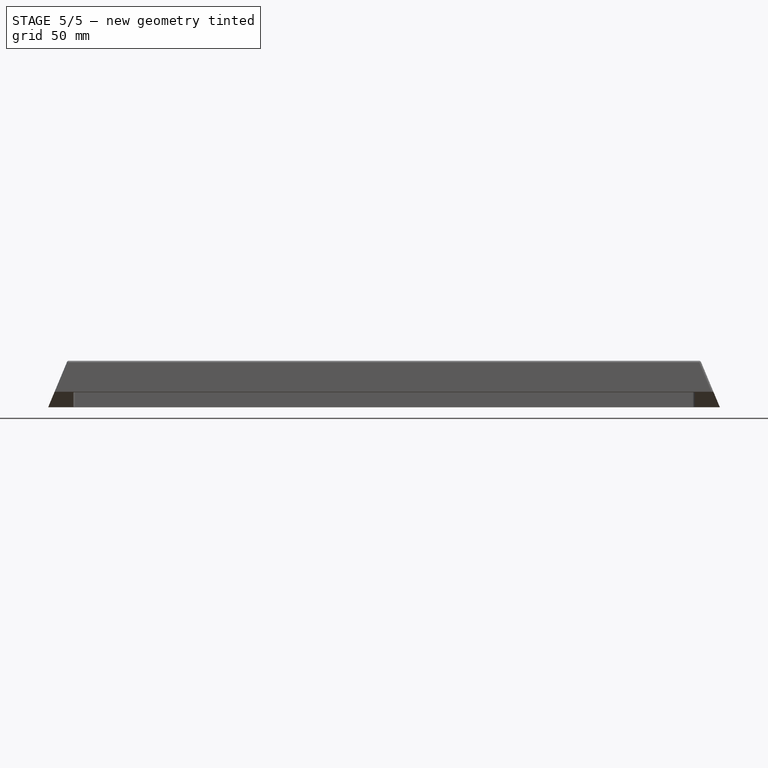
[diagram: stage 5 of 5 — front view after this stage's code; geometry added in this stage tinted green]
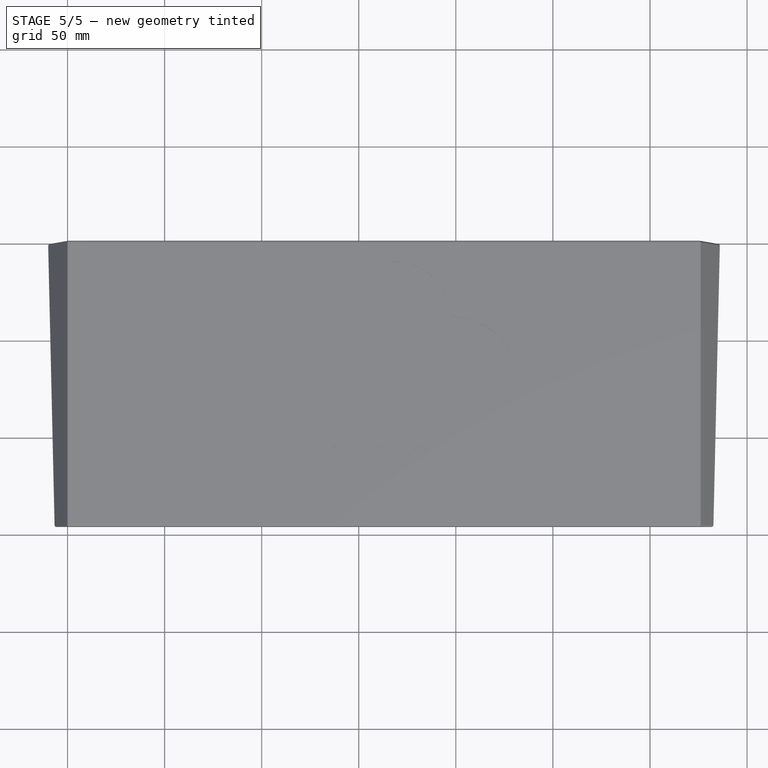
[diagram: stage 5 of 5 — top view after this stage's code; geometry added in this stage tinted green]
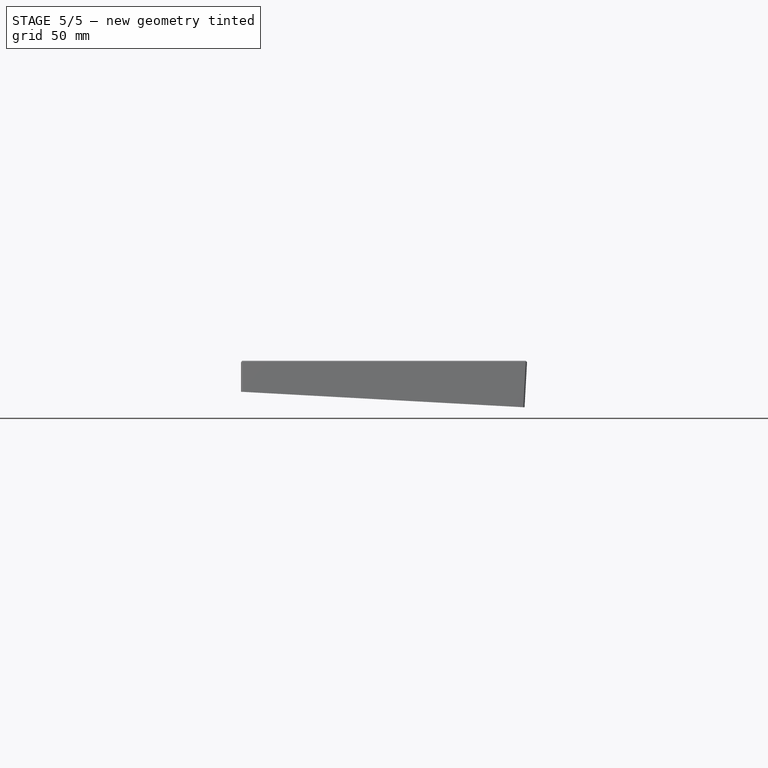
[diagram: stage 5 of 5 — right view after this stage's code; geometry added in this stage tinted green]
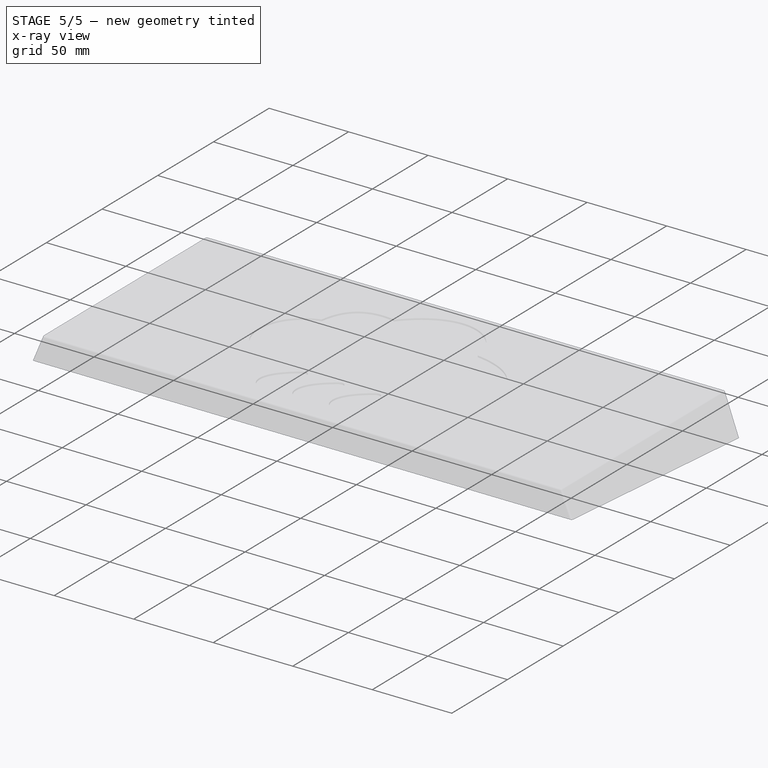
[diagram: stage 5 of 5 — x-ray composite at the iso view; earlier geometry ghosted, this stage's added geometry solid]
FEATURE [PartDesign::Fillet] Fillet010
  Base = -> Fillet009 [Edge27]
  BaseFeature = -> Fillet009
  Radius = 2
  SupportTransform = false
  UseAllEdges = false
FEATURE [PartDesign::Fillet] Fillet011
  Base = -> Fillet010 [Edge40]
  BaseFeature = -> Fillet010
  Radius = 2
  SupportTransform = false
  UseAllEdges = false
FEATURE [PartDesign::Fillet] Fillet012
  Base = -> Fillet011 [Edge26]
  BaseFeature = -> Fillet011
  Radius = 2
  SupportTransform = false
  UseAllEdges = false
FEATURE [PartDesign::Fillet] Fillet013
  Base = -> Fillet012 [Edge22]
  BaseFeature = -> Fillet012
  Radius = 2
  SupportTransform = false
  UseAllEdges = false
FEATURE [PartDesign::Fillet] Fillet014
  Base = -> Fillet013 [Edge33]
  BaseFeature = -> Fillet013
  Radius = 2
  SupportTransform = false
  UseAllEdges = false
FEATURE [PartDesign::Fillet] Fillet015
  Base = -> Fillet014 [Edge1]
  BaseFeature = -> Fillet014
  Radius = 2
  SupportTransform = false
  UseAllEdges = false
FEATURE [PartDesign::Body] Body
  Group = -> [Sketch,Pad,Sketch001,Pocket,Sketch002,Pocket001,Sketch003,Pocket002,Sketch004,Pad001,Sketch005,Pocket003,Sketch006,Pocket004,Sketch007,Pad002,Sketch009,Pad003,Sketch010,Pad004,Sketch011,Pocket005,Sketch012,Pocket006,Sketch013,Pocket007,Fillet,Fillet001,Fillet002,Fillet003,Fillet004,Fillet005,Fillet006,Fillet007,Fillet008,Fillet009,Fillet010,Fillet011,Fillet012,Fillet013,Fillet014,Fillet015]
  Origin = -> Origin
  Tip = -> Fillet015
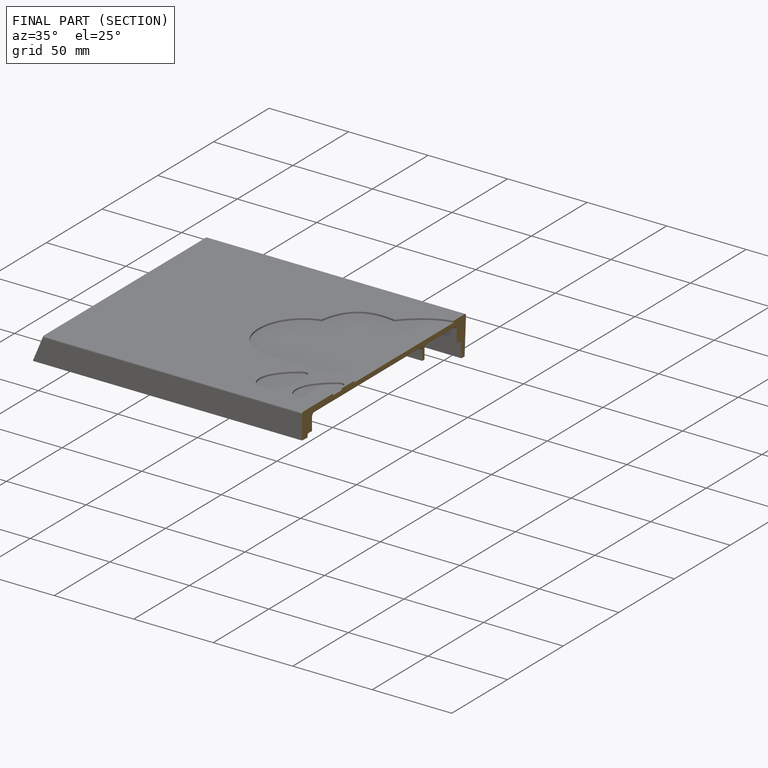
[diagram: finished part — half-section view (interior)]
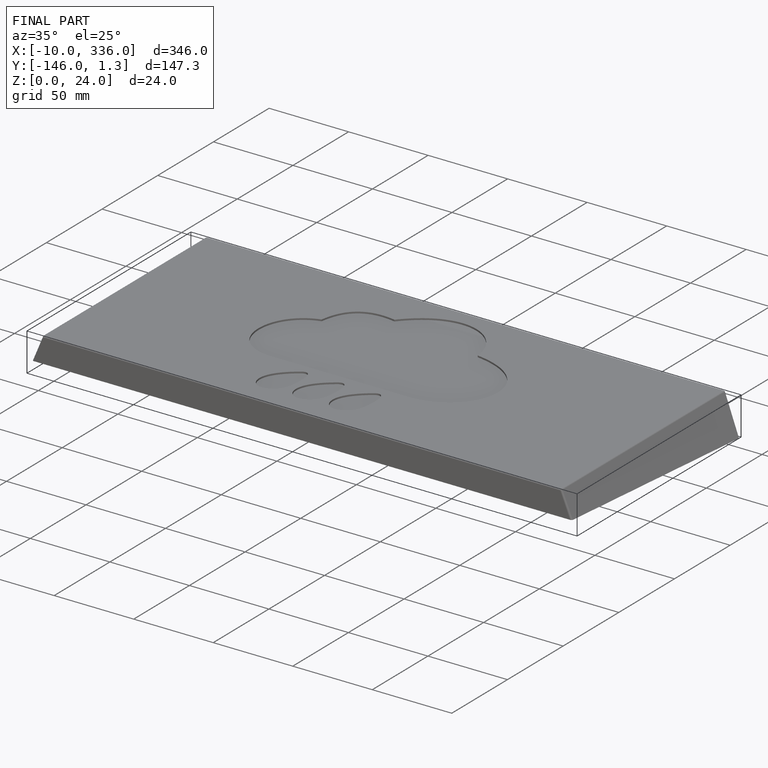
[diagram: finished part — iso view with bounding-box wireframe]
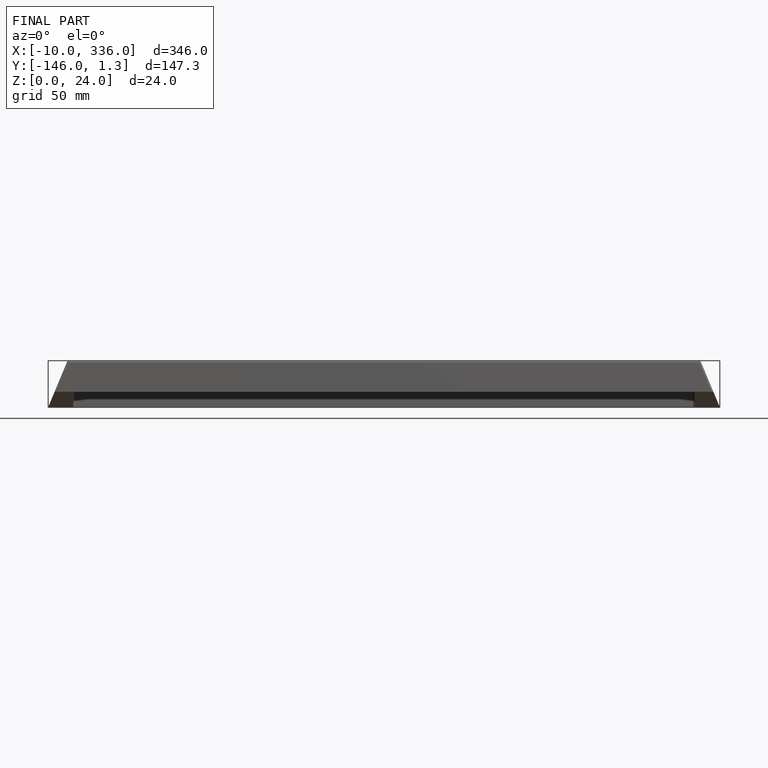
[diagram: finished part — front view with bounding-box wireframe]
